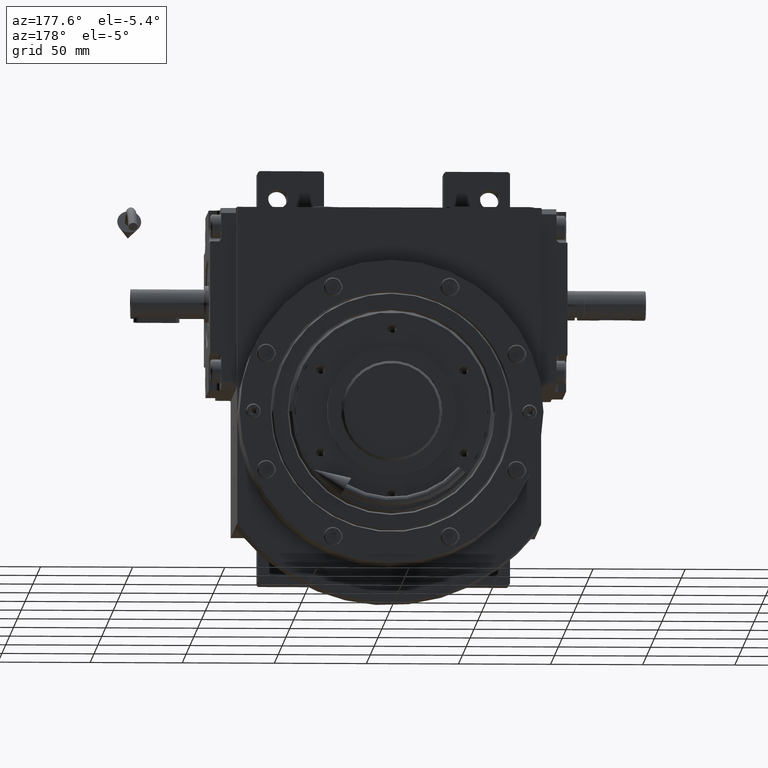
[diagram: clean part render]
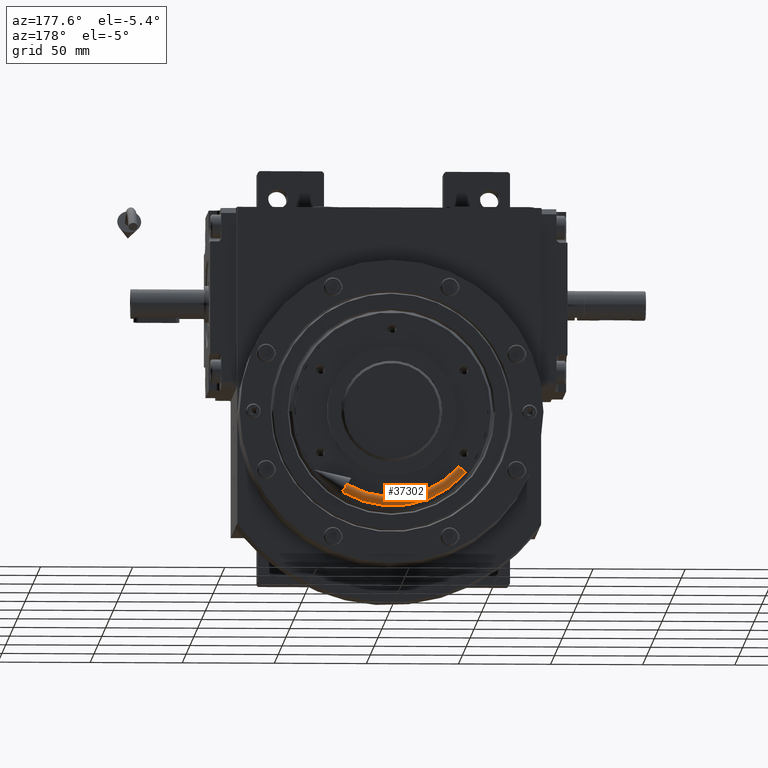
[diagram: same view with one face highlighted and labeled with its STEP entity id]
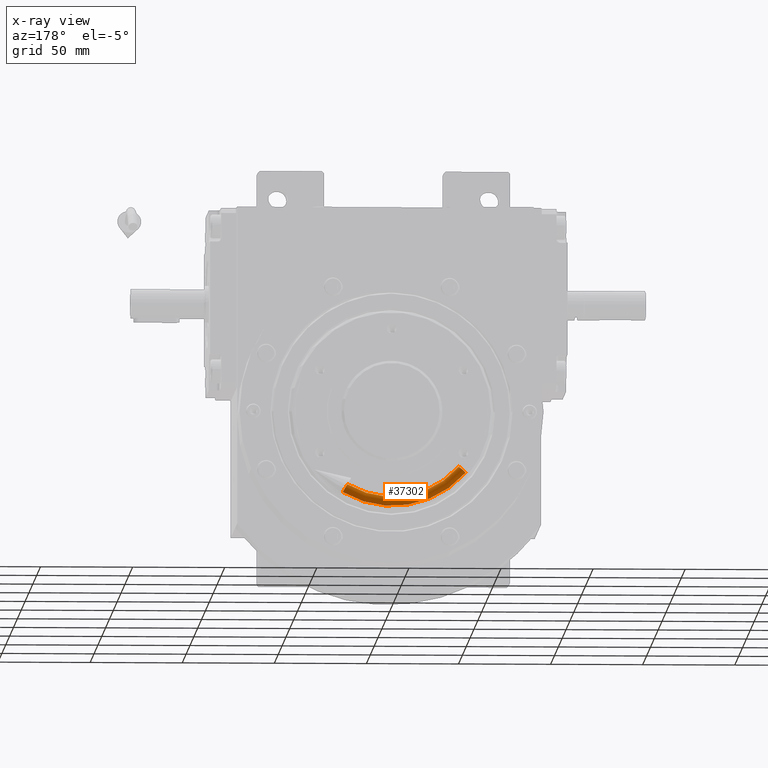
[diagram: x-ray of the same camera — body ghosted, the highlighted face saturated]
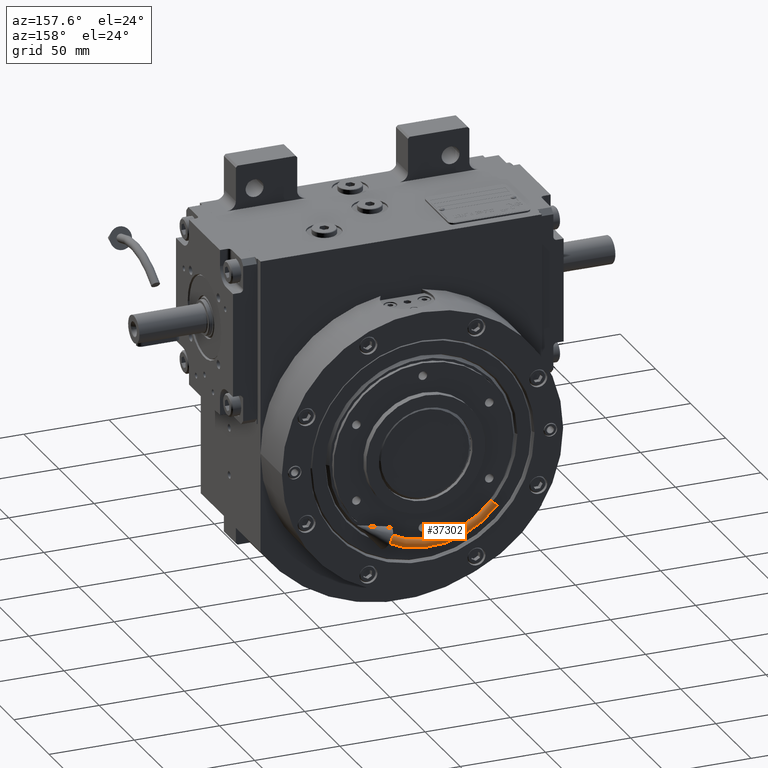
[diagram: same view with one face highlighted and labeled with its STEP entity id]
A machine part, auxiliary view. The second image highlights one B-rep face of the part: STEP entity #37302.
The next image is the same camera in x-ray: the body ghosted, the highlighted face saturated — about 0% of this face is hidden behind the body in this view.
A second angle (auxiliary view) of the same face is appended — the face is thin or edge-on in the first view.
In plain terms, the highlighted toroidal blend (fillet) surface has major radius 50 mm and minor (blend) radius 2.5 mm.
Its self-contained STEP definition (entity closure, byte-faithful):
#302 = AXIS2_PLACEMENT_3D ( 'NONE', #15424, #14151, #44870 ) ;
#5253 = DIRECTION ( 'NONE',  ( 1.000000000000000000, -2.041375527991182042E-16, -5.551115123125820913E-17 ) ) ;
#10738 = EDGE_LOOP ( 'NONE', ( #42758, #31302, #50920, #48267 ) ) ;
#12204 = DIRECTION ( 'NONE',  ( 0.9848077530122086864, -2.010362446775138044E-16, 0.1736481776669274446 ) ) ;
#14031 = CARTESIAN_POINT ( 'NONE',  ( 0.000000000000000000, -1.387778780781445676E-14, 0.000000000000000000 ) ) ;
#14151 = DIRECTION ( 'NONE',  ( 5.551115123125820913E-17, 0.000000000000000000, 1.000000000000000000 ) ) ;
#15424 = CARTESIAN_POINT ( 'NONE',  ( -49.99999999999962341, 0.000000000000000000, -1.387778780781445676E-14 ) ) ;
#17392 = CARTESIAN_POINT ( 'NONE',  ( -8.682408883346308670, -1.387778780781445676E-14, 49.24038765061003176 ) ) ;
#18260 = VERTEX_POINT ( 'NONE', #26540 ) ;
#21198 = AXIS2_PLACEMENT_3D ( 'NONE', #32311, #62028, #28082 ) ;
#26540 = CARTESIAN_POINT ( 'NONE',  ( -9.116529327510729530, -1.201676182087502474E-14, 51.70240703312413189 ) ) ;
#27142 = DIRECTION ( 'NONE',  ( 1.000000000000000000, -2.041375527991182042E-16, 0.000000000000000000 ) ) ;
#28082 = DIRECTION ( 'NONE',  ( 1.000000000000000000, -2.041375527991181795E-16, 0.000000000000000000 ) ) ;
#29286 = EDGE_CURVE ( 'NONE', #52779, #18260, #43482, .T. ) ;
#31302 = ORIENTED_EDGE ( 'NONE', *, *, #29286, .F. ) ;
#32311 = CARTESIAN_POINT ( 'NONE',  ( 0.000000000000000000, -1.387778780781445676E-14, 0.000000000000000000 ) ) ;
#37302 = ADVANCED_FACE ( 'NONE', ( #49918 ), #37680, .T. ) ;
#37680 = TOROIDAL_SURFACE ( 'NONE', #39749, 50.00000000000000000, 2.499999999983133048 ) ;
#39749 = AXIS2_PLACEMENT_3D ( 'NONE', #14031, #53469, #5253 ) ;
#40742 = DIRECTION ( 'NONE',  ( -2.041375527991182042E-16, -1.000000000000000000, 1.232595164407830946E-32 ) ) ;
#40814 = CIRCLE ( 'NONE', #21198, 52.49999999998313882 ) ;
#41375 = CARTESIAN_POINT ( 'NONE',  ( 6.249910015488181172E-32, -1.357162610802968412E-14, -3.773734306815928641E-48 ) ) ;
#42758 = ORIENTED_EDGE ( 'NONE', *, *, #44699, .F. ) ;
#43482 = CIRCLE ( 'NONE', #63073, 2.499999999983113064 ) ;
#44260 = CARTESIAN_POINT ( 'NONE',  ( -52.49999999998293276, -3.160566285864233684E-15, -1.373900992973723831E-14 ) ) ;
#44472 = EDGE_CURVE ( 'NONE', #52779, #63470, #61464, .T. ) ;
#44699 = EDGE_CURVE ( 'NONE', #18260, #52423, #40814, .T. ) ;
#44796 = EDGE_CURVE ( 'NONE', #63470, #52423, #50917, .T. ) ;
#44870 = DIRECTION ( 'NONE',  ( 1.000000000000000000, 0.000000000000000000, -5.551115123125813517E-17 ) ) ;
#46837 = DIRECTION ( 'NONE',  ( 0.1736481776669271393, 1.686894387621676009E-16, -0.9848077530122086864 ) ) ;
#48267 = ORIENTED_EDGE ( 'NONE', *, *, #44796, .T. ) ;
#49275 = CARTESIAN_POINT ( 'NONE',  ( -8.248288439181953535, -1.188784069127382043E-14, 46.77836826809632953 ) ) ;
#49918 = FACE_OUTER_BOUND ( 'NONE', #10738, .T. ) ;
#50917 = CIRCLE ( 'NONE', #302, 2.499999999983113064 ) ;
#50920 = ORIENTED_EDGE ( 'NONE', *, *, #44472, .T. ) ;
#52423 = VERTEX_POINT ( 'NONE', #44260 ) ;
#52779 = VERTEX_POINT ( 'NONE', #49275 ) ;
#53469 = DIRECTION ( 'NONE',  ( -2.041375527991182042E-16, -1.000000000000000000, 1.232595164407830946E-32 ) ) ;
#54219 = AXIS2_PLACEMENT_3D ( 'NONE', #41375, #40742, #27142 ) ;
#57786 = CARTESIAN_POINT ( 'NONE',  ( -47.50000000001650591, 0.000000000000000000, -1.401656568589166416E-14 ) ) ;
#61464 = CIRCLE ( 'NONE', #54219, 47.50000000001686828 ) ;
#62028 = DIRECTION ( 'NONE',  ( -2.041375527991182042E-16, -1.000000000000000000, 1.232595164407830946E-32 ) ) ;
#63073 = AXIS2_PLACEMENT_3D ( 'NONE', #17392, #12204, #46837 ) ;
#63470 = VERTEX_POINT ( 'NONE', #57786 ) ;